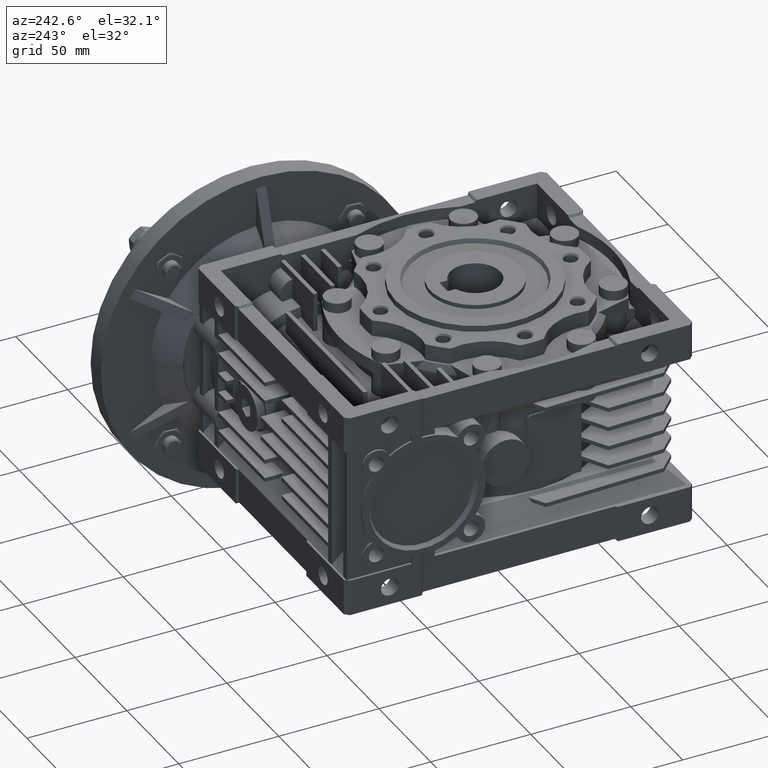
[diagram: clean part render]
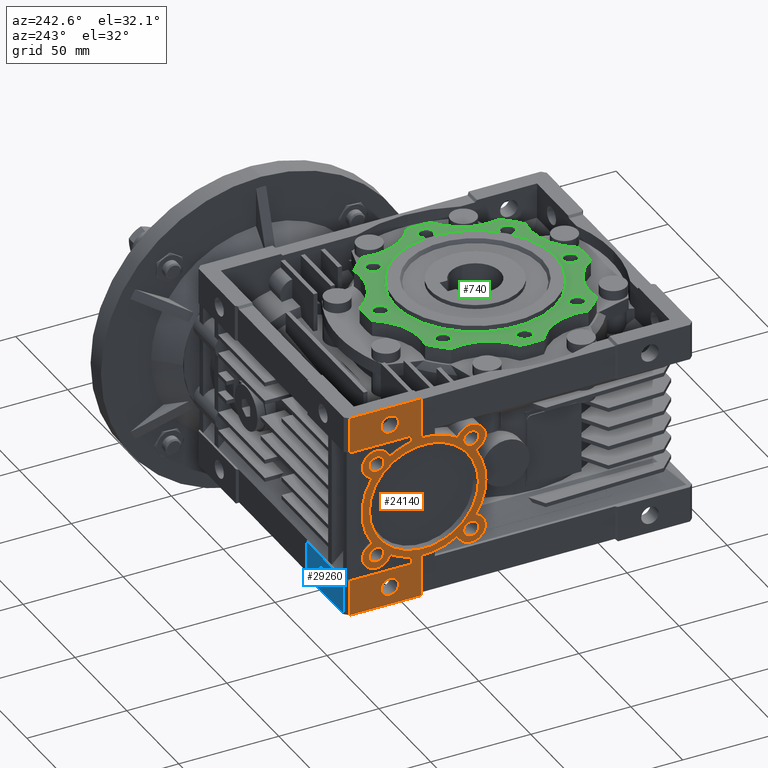
[diagram: same view with three faces highlighted in distinct colors, each labeled with its STEP entity id]
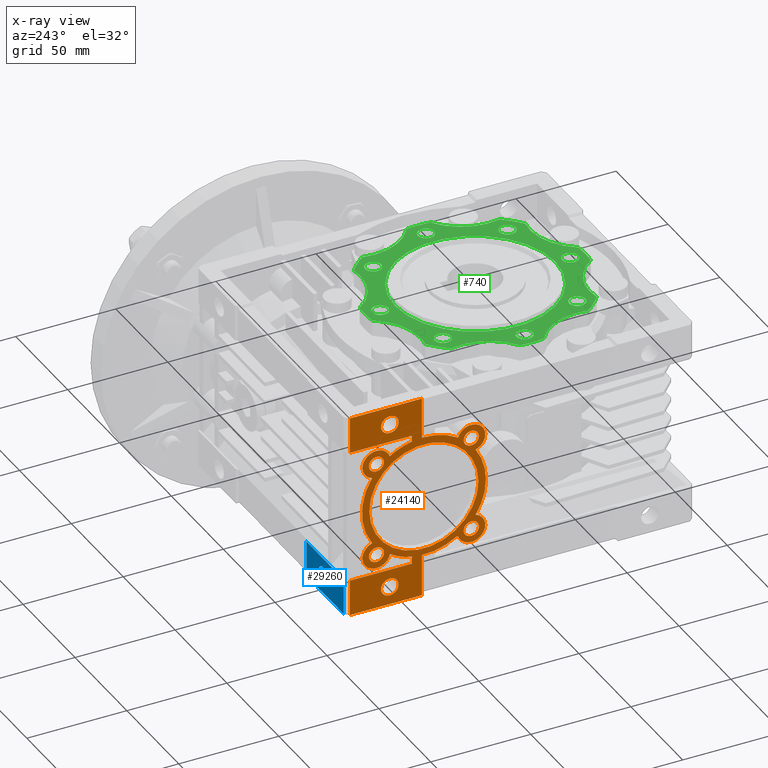
[diagram: x-ray of the same camera — body ghosted, the three highlighted faces saturated]
A machine part, auxiliary view with three faces highlighted in distinct colors.
The next image is the same camera in x-ray (body ghosted, the three faces saturated) — at least one of them is partly hidden behind the body in this view.
Their STEP definitions:

[orange] entity #24140 — the highlighted planar face has unit normal (-1, 0, 0).
#273 = DIRECTION ( 'NONE',  ( -1.000000000000000000, 0.000000000000000000, 0.000000000000000000 ) ) ;
#493 = EDGE_LOOP ( 'NONE', ( #1487, #40665 ) ) ;
#580 = DIRECTION ( 'NONE',  ( 0.000000000000000000, -1.000000000000000000, 0.000000000000000000 ) ) ;
#824 = DIRECTION ( 'NONE',  ( 1.000000000000000000, 0.000000000000000000, 0.000000000000000000 ) ) ;
#1390 = EDGE_LOOP ( 'NONE', ( #42561, #15130 ) ) ;
#1432 = DIRECTION ( 'NONE',  ( 0.000000000000000000, 0.000000000000000000, -1.000000000000000000 ) ) ;
#1487 = ORIENTED_EDGE ( 'NONE', *, *, #44357, .T. ) ;
#1678 = CARTESIAN_POINT ( 'NONE',  ( -72.00000000000000000, 100.0000000000000000, -33.50000000000000000 ) ) ;
#1798 = EDGE_LOOP ( 'NONE', ( #9841, #11365 ) ) ;
#1874 = ORIENTED_EDGE ( 'NONE', *, *, #14528, .T. ) ;
#1903 = CARTESIAN_POINT ( 'NONE',  ( -72.00000000000000000, 86.68807716974930599, 23.68807716974929889 ) ) ;
#1950 = VERTEX_POINT ( 'NONE', #42554 ) ;
#2047 = ORIENTED_EDGE ( 'NONE', *, *, #44321, .T. ) ;
#2139 = ORIENTED_EDGE ( 'NONE', *, *, #27483, .T. ) ;
#2416 = CARTESIAN_POINT ( 'NONE',  ( -72.00000000000000000, 81.73832970144350440, -18.73832970144350085 ) ) ;
#2586 = CARTESIAN_POINT ( 'NONE',  ( -72.00000000000000000, 100.0000000000000000, -51.50000000000000000 ) ) ;
#2739 = CIRCLE ( 'NONE', #26069, 3.780000000000005578 ) ;
#2824 = DIRECTION ( 'NONE',  ( 1.000000000000000000, 0.000000000000000000, 0.000000000000000000 ) ) ;
#2957 = CIRCLE ( 'NONE', #26271, 6.999999999999999112 ) ;
#3117 = FACE_BOUND ( 'NONE', #16362, .T. ) ;
#3131 = CARTESIAN_POINT ( 'NONE',  ( -72.00000000000000000, 35.53192283025069997, 23.68807716974929889 ) ) ;
#3164 = EDGE_LOOP ( 'NONE', ( #8600, #31979 ) ) ;
#3492 = DIRECTION ( 'NONE',  ( -1.000000000000000000, 0.000000000000000000, 0.000000000000000000 ) ) ;
#3504 = CARTESIAN_POINT ( 'NONE',  ( -72.00000000000000000, 80.00000000000000000, -42.50000000000000000 ) ) ;
#3638 = DIRECTION ( 'NONE',  ( 0.000000000000000000, 1.000000000000000000, 0.000000000000000000 ) ) ;
#3689 = CARTESIAN_POINT ( 'NONE',  ( -72.00000000000000000, 39.31192283025060163, 23.68807716974929889 ) ) ;
#3751 = CARTESIAN_POINT ( 'NONE',  ( -72.00000000000000000, 35.53192283025069997, -23.68807716974929889 ) ) ;
#4480 = DIRECTION ( 'NONE',  ( -1.000000000000000000, 0.000000000000000000, 0.000000000000000000 ) ) ;
#4576 = DIRECTION ( 'NONE',  ( 1.000000000000000000, 0.000000000000000000, 0.000000000000000000 ) ) ;
#4740 = VERTEX_POINT ( 'NONE', #37991 ) ;
#4777 = EDGE_CURVE ( 'NONE', #17482, #32303, #9698, .T. ) ;
#4936 = CARTESIAN_POINT ( 'NONE',  ( -72.00000000000000000, 39.31192283025070111, -23.68807716974940192 ) ) ;
#5015 = CARTESIAN_POINT ( 'NONE',  ( -72.00000000000000000, 79.89834142499850600, -25.39086562297904948 ) ) ;
#5130 = CIRCLE ( 'NONE', #37061, 3.779999999999998472 ) ;
#5460 = DIRECTION ( 'NONE',  ( 0.000000000000000000, -1.000000000000000000, 0.000000000000000000 ) ) ;
#5841 = ORIENTED_EDGE ( 'NONE', *, *, #30502, .T. ) ;
#6213 = CIRCLE ( 'NONE', #26427, 3.780000000000005578 ) ;
#6445 = CIRCLE ( 'NONE', #18084, 7.000000000000006217 ) ;
#6456 = DIRECTION ( 'NONE',  ( -1.000000000000000000, 0.000000000000000000, 0.000000000000000000 ) ) ;
#6514 = CIRCLE ( 'NONE', #18949, 4.390000000000005009 ) ;
#6532 = PLANE ( 'NONE',  #33853 ) ;
#6598 = EDGE_CURVE ( 'NONE', #40575, #18283, #6213, .T. ) ;
#6786 = LINE ( 'NONE', #28470, #20115 ) ;
#7264 = ORIENTED_EDGE ( 'NONE', *, *, #32614, .F. ) ;
#7387 = EDGE_CURVE ( 'NONE', #22120, #37602, #17971, .T. ) ;
#7418 = CARTESIAN_POINT ( 'NONE',  ( -72.00000000000000000, 86.68807716974939126, 23.68807716974940192 ) ) ;
#7856 = ORIENTED_EDGE ( 'NONE', *, *, #39740, .T. ) ;
#8282 = AXIS2_PLACEMENT_3D ( 'NONE', #30027, #38832, #45601 ) ;
#8527 = DIRECTION ( 'NONE',  ( 0.000000000000000000, 1.000000000000000000, 0.000000000000000000 ) ) ;
#8581 = VECTOR ( 'NONE', #10258, 1000.000000000000000 ) ;
#8600 = ORIENTED_EDGE ( 'NONE', *, *, #17081, .T. ) ;
#8630 = EDGE_CURVE ( 'NONE', #8794, #41178, #12454, .T. ) ;
#8686 = CIRCLE ( 'NONE', #28188, 31.00000000000000000 ) ;
#8693 = LINE ( 'NONE', #1678, #36387 ) ;
#8762 = CARTESIAN_POINT ( 'NONE',  ( -72.00000000000000000, 39.31192283025070111, -23.68807716974940192 ) ) ;
#8794 = VERTEX_POINT ( 'NONE', #22987 ) ;
#9010 = CARTESIAN_POINT ( 'NONE',  ( -72.00000000000000000, 100.0000000000000000, 33.50000000000000000 ) ) ;
#9084 = AXIS2_PLACEMENT_3D ( 'NONE', #15088, #6456, #21337 ) ;
#9405 = ORIENTED_EDGE ( 'NONE', *, *, #4777, .T. ) ;
#9478 = AXIS2_PLACEMENT_3D ( 'NONE', #8762, #45801, #23663 ) ;
#9480 = EDGE_CURVE ( 'NONE', #37602, #22120, #47223, .T. ) ;
#9581 = CIRCLE ( 'NONE', #11134, 31.00000000000000000 ) ;
#9698 = LINE ( 'NONE', #24352, #14602 ) ;
#9841 = ORIENTED_EDGE ( 'NONE', *, *, #38392, .T. ) ;
#9852 = VERTEX_POINT ( 'NONE', #18989 ) ;
#9858 = ORIENTED_EDGE ( 'NONE', *, *, #29941, .T. ) ;
#10170 = CARTESIAN_POINT ( 'NONE',  ( -72.00000000000000000, 69.00000000000000000, -33.50000000000000000 ) ) ;
#10258 = DIRECTION ( 'NONE',  ( 0.000000000000000000, 0.000000000000000000, -1.000000000000000000 ) ) ;
#10538 = LINE ( 'NONE', #10985, #35836 ) ;
#10563 = AXIS2_PLACEMENT_3D ( 'NONE', #24999, #13269, #24281 ) ;
#10575 = VERTEX_POINT ( 'NONE', #45580 ) ;
#10759 = EDGE_CURVE ( 'NONE', #33774, #20912, #8693, .T. ) ;
#10769 = DIRECTION ( 'NONE',  ( 0.000000000000000000, -1.000000000000000000, 0.000000000000000000 ) ) ;
#10823 = DIRECTION ( 'NONE',  ( 0.000000000000000000, -1.000000000000000000, 0.000000000000000000 ) ) ;
#10849 = CARTESIAN_POINT ( 'NONE',  ( -72.00000000000000000, 64.00000000000000000, 33.50000000000000000 ) ) ;
#10985 = CARTESIAN_POINT ( 'NONE',  ( -72.00000000000000000, 64.00000000000000000, -33.50000000000000000 ) ) ;
#11134 = AXIS2_PLACEMENT_3D ( 'NONE', #44903, #19347, #11530 ) ;
#11250 = AXIS2_PLACEMENT_3D ( 'NONE', #11259, #3492, #33960 ) ;
#11259 = CARTESIAN_POINT ( 'NONE',  ( -72.00000000000000000, 39.31192283025060163, 23.68807716974929889 ) ) ;
#11344 = VERTEX_POINT ( 'NONE', #46656 ) ;
#11365 = ORIENTED_EDGE ( 'NONE', *, *, #6598, .T. ) ;
#11451 = CARTESIAN_POINT ( 'NONE',  ( -72.00000000000000000, 69.00000000000000000, -33.50000000000000000 ) ) ;
#11521 = EDGE_CURVE ( 'NONE', #37011, #9852, #2957, .T. ) ;
#11530 = DIRECTION ( 'NONE',  ( 0.000000000000000000, -1.000000000000000000, 0.000000000000000000 ) ) ;
#12161 = EDGE_CURVE ( 'NONE', #31379, #32513, #41867, .T. ) ;
#12454 = CIRCLE ( 'NONE', #19483, 4.390000000000005009 ) ;
#12749 = ORIENTED_EDGE ( 'NONE', *, *, #10759, .T. ) ;
#12757 = ORIENTED_EDGE ( 'NONE', *, *, #35622, .T. ) ;
#12968 = DIRECTION ( 'NONE',  ( -1.000000000000000000, 0.000000000000000000, 0.000000000000000000 ) ) ;
#13200 = EDGE_CURVE ( 'NONE', #28251, #44687, #43657, .T. ) ;
#13269 = DIRECTION ( 'NONE',  ( 1.000000000000000000, 0.000000000000000000, 0.000000000000000000 ) ) ;
#13341 = ORIENTED_EDGE ( 'NONE', *, *, #9480, .T. ) ;
#14320 = ORIENTED_EDGE ( 'NONE', *, *, #23909, .T. ) ;
#14528 = EDGE_CURVE ( 'NONE', #35825, #22798, #8686, .T. ) ;
#14602 = VECTOR ( 'NONE', #16771, 1000.000000000000000 ) ;
#14637 = AXIS2_PLACEMENT_3D ( 'NONE', #4936, #12968, #45853 ) ;
#14864 = DIRECTION ( 'NONE',  ( -1.000000000000000000, 0.000000000000000000, 0.000000000000000000 ) ) ;
#14872 = DIRECTION ( 'NONE',  ( 0.000000000000000000, -1.000000000000000000, 0.000000000000000000 ) ) ;
#14891 = DIRECTION ( 'NONE',  ( -1.000000000000000000, 0.000000000000000000, 0.000000000000000000 ) ) ;
#14912 = ORIENTED_EDGE ( 'NONE', *, *, #47661, .T. ) ;
#14968 = EDGE_CURVE ( 'NONE', #10575, #35825, #6445, .T. ) ;
#15088 = CARTESIAN_POINT ( 'NONE',  ( -72.00000000000000000, 63.00000000000000000, -5.204170427930419706E-15 ) ) ;
#15130 = ORIENTED_EDGE ( 'NONE', *, *, #19683, .T. ) ;
#15335 = AXIS2_PLACEMENT_3D ( 'NONE', #32637, #47887, #25750 ) ;
#15540 = CARTESIAN_POINT ( 'NONE',  ( -72.00000000000000000, 63.00000000000000000, 0.000000000000000000 ) ) ;
#15591 = ORIENTED_EDGE ( 'NONE', *, *, #14968, .T. ) ;
#15739 = VERTEX_POINT ( 'NONE', #32763 ) ;
#16020 = DIRECTION ( 'NONE',  ( 0.000000000000000000, 1.000000000000000000, 0.000000000000000000 ) ) ;
#16028 = DIRECTION ( 'NONE',  ( -1.000000000000000000, 0.000000000000000000, 0.000000000000000000 ) ) ;
#16228 = ORIENTED_EDGE ( 'NONE', *, *, #42652, .T. ) ;
#16362 = EDGE_LOOP ( 'NONE', ( #13341, #34720 ) ) ;
#16649 = CARTESIAN_POINT ( 'NONE',  ( -72.00000000000000000, 35.75000000000000711, -3.337162527676537520E-15 ) ) ;
#16706 = DIRECTION ( 'NONE',  ( 0.000000000000000000, -1.000000000000000000, -1.776356839400249873E-15 ) ) ;
#16740 = DIRECTION ( 'NONE',  ( 1.000000000000000000, 0.000000000000000000, 0.000000000000000000 ) ) ;
#16771 = DIRECTION ( 'NONE',  ( 0.000000000000000000, 0.000000000000000000, 1.000000000000000000 ) ) ;
#16791 = CARTESIAN_POINT ( 'NONE',  ( -72.00000000000000000, 86.68807716974939126, -23.68807716974929889 ) ) ;
#16915 = VERTEX_POINT ( 'NONE', #3751 ) ;
#17081 = EDGE_CURVE ( 'NONE', #25732, #30307, #18906, .T. ) ;
#17259 = FACE_BOUND ( 'NONE', #3164, .T. ) ;
#17482 = VERTEX_POINT ( 'NONE', #36085 ) ;
#17695 = EDGE_CURVE ( 'NONE', #41178, #8794, #6514, .T. ) ;
#17758 = DIRECTION ( 'NONE',  ( 0.000000000000000000, 0.000000000000000000, 1.000000000000000000 ) ) ;
#17827 = CARTESIAN_POINT ( 'NONE',  ( -72.00000000000000000, 69.00000000000000000, -33.50000000000000000 ) ) ;
#17937 = ORIENTED_EDGE ( 'NONE', *, *, #11521, .T. ) ;
#17971 = CIRCLE ( 'NONE', #42061, 27.24999999999999645 ) ;
#17981 = FACE_BOUND ( 'NONE', #493, .T. ) ;
#18084 = AXIS2_PLACEMENT_3D ( 'NONE', #7418, #4480, #26889 ) ;
#18207 = DIRECTION ( 'NONE',  ( 0.000000000000000000, 0.000000000000000000, 1.000000000000000000 ) ) ;
#18234 = CIRCLE ( 'NONE', #26012, 3.779999999999998472 ) ;
#18283 = VERTEX_POINT ( 'NONE', #33679 ) ;
#18502 = AXIS2_PLACEMENT_3D ( 'NONE', #36904, #29340, #47806 ) ;
#18906 = CIRCLE ( 'NONE', #28268, 4.390000000000005009 ) ;
#18949 = AXIS2_PLACEMENT_3D ( 'NONE', #43515, #2824, #10823 ) ;
#18989 = CARTESIAN_POINT ( 'NONE',  ( -72.00000000000000000, 45.95537634133370375, 25.89364409144510049 ) ) ;
#19080 = CARTESIAN_POINT ( 'NONE',  ( -72.00000000000000000, 86.68807716974930599, 23.68807716974929889 ) ) ;
#19189 = EDGE_LOOP ( 'NONE', ( #41395, #36455, #45458, #7856, #19583, #2047, #17937, #16228, #9405, #5841, #12749, #45025, #12757, #30529, #15591, #1874, #30568, #14912, #35169, #9858, #7264, #30878, #2139, #14320 ) ) ;
#19212 = CIRCLE ( 'NONE', #8282, 30.50000000000000000 ) ;
#19228 = ORIENTED_EDGE ( 'NONE', *, *, #17695, .T. ) ;
#19347 = DIRECTION ( 'NONE',  ( -1.000000000000000000, 0.000000000000000000, 0.000000000000000000 ) ) ;
#19483 = AXIS2_PLACEMENT_3D ( 'NONE', #3504, #36925, #47831 ) ;
#19583 = ORIENTED_EDGE ( 'NONE', *, *, #40312, .T. ) ;
#19683 = EDGE_CURVE ( 'NONE', #4740, #16915, #5130, .T. ) ;
#19946 = CARTESIAN_POINT ( 'NONE',  ( -72.00000000000000000, 63.00000000000000000, -4.857225732735059864E-14 ) ) ;
#20033 = CARTESIAN_POINT ( 'NONE',  ( -72.00000000000000000, 63.00000000000000000, 0.000000000000000000 ) ) ;
#20115 = VECTOR ( 'NONE', #17758, 1000.000000000000000 ) ;
#20194 = DIRECTION ( 'NONE',  ( 0.000000000000000000, 1.000000000000000000, 0.000000000000000000 ) ) ;
#20441 = CARTESIAN_POINT ( 'NONE',  ( -72.00000000000000000, 63.00000000000000000, 0.000000000000000000 ) ) ;
#20467 = DIRECTION ( 'NONE',  ( 0.000000000000000000, -1.000000000000000000, 0.000000000000000000 ) ) ;
#20882 = CARTESIAN_POINT ( 'NONE',  ( -72.00000000000000000, 63.00000000000000000, -8.673617379884040205E-15 ) ) ;
#20912 = VERTEX_POINT ( 'NONE', #9010 ) ;
#20939 = CARTESIAN_POINT ( 'NONE',  ( -72.00000000000000000, 64.00000000000000000, -33.50000000000000000 ) ) ;
#21337 = DIRECTION ( 'NONE',  ( 0.000000000000000000, -1.000000000000000000, 0.000000000000000000 ) ) ;
#21415 = FACE_OUTER_BOUND ( 'NONE', #19189, .T. ) ;
#21885 = FACE_BOUND ( 'NONE', #1798, .T. ) ;
#22120 = VERTEX_POINT ( 'NONE', #16649 ) ;
#22203 = CARTESIAN_POINT ( 'NONE',  ( -72.00000000000000000, 90.46807716974940661, -23.68807716974929889 ) ) ;
#22267 = CARTESIAN_POINT ( 'NONE',  ( -72.00000000000000000, 43.09192283025070225, 23.68807716974929889 ) ) ;
#22473 = EDGE_CURVE ( 'NONE', #35905, #45185, #35838, .T. ) ;
#22691 = DIRECTION ( 'NONE',  ( 1.000000000000000000, 0.000000000000000000, 0.000000000000000000 ) ) ;
#22798 = VERTEX_POINT ( 'NONE', #37468 ) ;
#22987 = CARTESIAN_POINT ( 'NONE',  ( -72.00000000000000000, 75.60999999999999943, -42.50000000000000000 ) ) ;
#22988 = CARTESIAN_POINT ( 'NONE',  ( -72.00000000000000000, 64.00000000000000000, 51.50000000000000000 ) ) ;
#23026 = EDGE_CURVE ( 'NONE', #20912, #45527, #44243, .T. ) ;
#23171 = DIRECTION ( 'NONE',  ( 0.000000000000000000, 0.000000000000000000, 1.000000000000000000 ) ) ;
#23517 = EDGE_CURVE ( 'NONE', #22798, #33024, #47073, .T. ) ;
#23663 = DIRECTION ( 'NONE',  ( 0.000000000000000000, -1.000000000000000000, 0.000000000000000000 ) ) ;
#23711 = CARTESIAN_POINT ( 'NONE',  ( -72.00000000000000000, 90.25000000000000000, 0.000000000000000000 ) ) ;
#23726 = VECTOR ( 'NONE', #43292, 1000.000000000000000 ) ;
#23846 = DIRECTION ( 'NONE',  ( 1.000000000000000000, 0.000000000000000000, 0.000000000000000000 ) ) ;
#23871 = DIRECTION ( 'NONE',  ( 0.000000000000000000, 0.9805874010611383973, 0.1960825052883660990 ) ) ;
#23909 = EDGE_CURVE ( 'NONE', #11344, #45185, #33042, .T. ) ;
#24140 = ADVANCED_FACE ( 'NONE', ( #21415, #25293, #17981, #21885, #36765, #17259, #36547, #3117 ), #6532, .T. ) ;
#24161 = CARTESIAN_POINT ( 'NONE',  ( -72.00000000000000000, 84.39000000000000057, 42.50000000000000000 ) ) ;
#24281 = DIRECTION ( 'NONE',  ( 0.000000000000000000, -1.000000000000000000, 0.000000000000000000 ) ) ;
#24352 = CARTESIAN_POINT ( 'NONE',  ( -72.00000000000000000, 64.00000000000000000, -33.50000000000000000 ) ) ;
#24576 = CARTESIAN_POINT ( 'NONE',  ( -72.00000000000000000, 100.0000000000000000, 51.50000000000000000 ) ) ;
#24784 = AXIS2_PLACEMENT_3D ( 'NONE', #1903, #16740, #35305 ) ;
#24999 = CARTESIAN_POINT ( 'NONE',  ( -72.00000000000000000, 86.68807716974939126, -23.68807716974929889 ) ) ;
#25177 = DIRECTION ( 'NONE',  ( 0.000000000000000000, 1.000000000000000000, 0.000000000000000000 ) ) ;
#25293 = FACE_BOUND ( 'NONE', #26662, .T. ) ;
#25398 = CARTESIAN_POINT ( 'NONE',  ( -72.00000000000000000, 69.00000000000000000, 33.50000000000000000 ) ) ;
#25508 = VECTOR ( 'NONE', #3638, 1000.000000000000000 ) ;
#25578 = CIRCLE ( 'NONE', #14637, 6.999999999999999112 ) ;
#25681 = CARTESIAN_POINT ( 'NONE',  ( -72.00000000000000000, 32.31192283025060163, 23.68807716974929889 ) ) ;
#25732 = VERTEX_POINT ( 'NONE', #32895 ) ;
#25750 = DIRECTION ( 'NONE',  ( 0.000000000000000000, -1.000000000000000000, 0.000000000000000000 ) ) ;
#25845 = EDGE_CURVE ( 'NONE', #30307, #25732, #40240, .T. ) ;
#25878 = CARTESIAN_POINT ( 'NONE',  ( -72.00000000000000000, 86.68807716974939126, -23.68807716974929889 ) ) ;
#25989 = CARTESIAN_POINT ( 'NONE',  ( -72.00000000000000000, 0.000000000000000000, -51.50000000000000000 ) ) ;
#26012 = AXIS2_PLACEMENT_3D ( 'NONE', #32796, #43727, #48056 ) ;
#26069 = AXIS2_PLACEMENT_3D ( 'NONE', #19080, #44423, #40773 ) ;
#26271 = AXIS2_PLACEMENT_3D ( 'NONE', #3689, #273, #10769 ) ;
#26291 = LINE ( 'NONE', #45031, #25508 ) ;
#26337 = LINE ( 'NONE', #37326, #44328 ) ;
#26427 = AXIS2_PLACEMENT_3D ( 'NONE', #16791, #34860, #20467 ) ;
#26451 = CARTESIAN_POINT ( 'NONE',  ( -72.00000000000000000, 32.31192283025070111, -23.68807716974940192 ) ) ;
#26509 = DIRECTION ( 'NONE',  ( 0.000000000000000000, -1.000000000000000000, 0.000000000000000000 ) ) ;
#26540 = VERTEX_POINT ( 'NONE', #22267 ) ;
#26662 = EDGE_LOOP ( 'NONE', ( #46731, #36832 ) ) ;
#26746 = CARTESIAN_POINT ( 'NONE',  ( -72.00000000000000000, 39.31192283025070111, -23.68807716974929889 ) ) ;
#26793 = CARTESIAN_POINT ( 'NONE',  ( -72.00000000000000000, 64.00000000000000000, -51.50000000000000000 ) ) ;
#26889 = DIRECTION ( 'NONE',  ( 0.000000000000000000, -1.000000000000000000, 0.000000000000000000 ) ) ;
#26970 = AXIS2_PLACEMENT_3D ( 'NONE', #41759, #46105, #5460 ) ;
#27123 = CARTESIAN_POINT ( 'NONE',  ( -72.00000000000000000, 80.00000000000000000, 42.50000000000000000 ) ) ;
#27483 = EDGE_CURVE ( 'NONE', #37813, #11344, #6786, .T. ) ;
#27653 = AXIS2_PLACEMENT_3D ( 'NONE', #25878, #14891, #33934 ) ;
#27663 = EDGE_CURVE ( 'NONE', #37813, #42305, #30117, .T. ) ;
#28188 = AXIS2_PLACEMENT_3D ( 'NONE', #20882, #31613, #16706 ) ;
#28251 = VERTEX_POINT ( 'NONE', #41551 ) ;
#28268 = AXIS2_PLACEMENT_3D ( 'NONE', #27123, #824, #580 ) ;
#28470 = CARTESIAN_POINT ( 'NONE',  ( -72.00000000000000000, 64.00000000000000000, -33.50000000000000000 ) ) ;
#28712 = DIRECTION ( 'NONE',  ( -1.000000000000000000, 0.000000000000000000, 0.000000000000000000 ) ) ;
#28720 = EDGE_CURVE ( 'NONE', #35642, #15739, #25578, .T. ) ;
#28764 = CARTESIAN_POINT ( 'NONE',  ( -72.00000000000000000, 88.89364409144509693, 17.04462365866634954 ) ) ;
#28923 = CARTESIAN_POINT ( 'NONE',  ( -72.00000000000000000, 46.65882385822339984, -25.75297967815435030 ) ) ;
#28974 = EDGE_CURVE ( 'NONE', #29691, #10575, #32708, .T. ) ;
#28979 = VERTEX_POINT ( 'NONE', #30914 ) ;
#29259 = CIRCLE ( 'NONE', #10563, 3.780000000000005578 ) ;
#29340 = DIRECTION ( 'NONE',  ( -1.000000000000000000, 0.000000000000000000, 0.000000000000000000 ) ) ;
#29527 = DIRECTION ( 'NONE',  ( 0.000000000000000000, -1.000000000000000000, 8.881784197001250351E-16 ) ) ;
#29691 = VERTEX_POINT ( 'NONE', #38109 ) ;
#29941 = EDGE_CURVE ( 'NONE', #44687, #1950, #10538, .T. ) ;
#29987 = CARTESIAN_POINT ( 'NONE',  ( -72.00000000000000000, 39.31192283025070111, -23.68807716974929889 ) ) ;
#30027 = CARTESIAN_POINT ( 'NONE',  ( -72.00000000000000000, 63.00000000000000000, 0.000000000000000000 ) ) ;
#30117 = LINE ( 'NONE', #25989, #44968 ) ;
#30307 = VERTEX_POINT ( 'NONE', #24161 ) ;
#30502 = EDGE_CURVE ( 'NONE', #32303, #33774, #26291, .T. ) ;
#30529 = ORIENTED_EDGE ( 'NONE', *, *, #28974, .T. ) ;
#30568 = ORIENTED_EDGE ( 'NONE', *, *, #23517, .T. ) ;
#30878 = ORIENTED_EDGE ( 'NONE', *, *, #27663, .F. ) ;
#30914 = CARTESIAN_POINT ( 'NONE',  ( -72.00000000000000000, 37.10635590855485333, 17.04462365866625007 ) ) ;
#31379 = VERTEX_POINT ( 'NONE', #35653 ) ;
#31613 = DIRECTION ( 'NONE',  ( -1.000000000000000000, 0.000000000000000000, 0.000000000000000000 ) ) ;
#31902 = VERTEX_POINT ( 'NONE', #43812 ) ;
#31979 = ORIENTED_EDGE ( 'NONE', *, *, #25845, .T. ) ;
#32076 = CIRCLE ( 'NONE', #9478, 6.999999999999999112 ) ;
#32151 = LINE ( 'NONE', #10170, #43140 ) ;
#32303 = VERTEX_POINT ( 'NONE', #22988 ) ;
#32501 = AXIS2_PLACEMENT_3D ( 'NONE', #15540, #4576, #16020 ) ;
#32513 = VERTEX_POINT ( 'NONE', #43451 ) ;
#32614 = EDGE_CURVE ( 'NONE', #42305, #1950, #26337, .T. ) ;
#32637 = CARTESIAN_POINT ( 'NONE',  ( -72.00000000000000000, 39.31192283025070111, 23.68807716974929889 ) ) ;
#32673 = EDGE_CURVE ( 'NONE', #16915, #4740, #46647, .T. ) ;
#32708 = CIRCLE ( 'NONE', #36503, 31.00000000000000000 ) ;
#32763 = CARTESIAN_POINT ( 'NONE',  ( -72.00000000000000000, 37.10635590855489596, -17.04462365866639928 ) ) ;
#32796 = CARTESIAN_POINT ( 'NONE',  ( -72.00000000000000000, 39.31192283025070111, 23.68807716974929889 ) ) ;
#32895 = CARTESIAN_POINT ( 'NONE',  ( -72.00000000000000000, 75.60999999999999943, 42.50000000000000000 ) ) ;
#32911 = VERTEX_POINT ( 'NONE', #3131 ) ;
#33024 = VERTEX_POINT ( 'NONE', #5015 ) ;
#33042 = CIRCLE ( 'NONE', #43141, 30.50000000000000000 ) ;
#33679 = CARTESIAN_POINT ( 'NONE',  ( -72.00000000000000000, 82.90807716974939012, -23.68807716974929889 ) ) ;
#33774 = VERTEX_POINT ( 'NONE', #24576 ) ;
#33853 = AXIS2_PLACEMENT_3D ( 'NONE', #20939, #28712, #18207 ) ;
#33934 = DIRECTION ( 'NONE',  ( 0.000000000000000000, -1.000000000000000000, 0.000000000000000000 ) ) ;
#33960 = DIRECTION ( 'NONE',  ( 0.000000000000000000, -1.000000000000000000, 0.000000000000000000 ) ) ;
#34163 = CARTESIAN_POINT ( 'NONE',  ( -72.00000000000000000, 84.39000000000000057, -42.50000000000000000 ) ) ;
#34720 = ORIENTED_EDGE ( 'NONE', *, *, #7387, .T. ) ;
#34860 = DIRECTION ( 'NONE',  ( 1.000000000000000000, 0.000000000000000000, 0.000000000000000000 ) ) ;
#35169 = ORIENTED_EDGE ( 'NONE', *, *, #13200, .T. ) ;
#35305 = DIRECTION ( 'NONE',  ( 0.000000000000000000, -1.000000000000000000, 0.000000000000000000 ) ) ;
#35622 = EDGE_CURVE ( 'NONE', #45527, #29691, #32151, .T. ) ;
#35642 = VERTEX_POINT ( 'NONE', #26451 ) ;
#35653 = CARTESIAN_POINT ( 'NONE',  ( -72.00000000000000000, 90.46807716974930713, 23.68807716974929889 ) ) ;
#35825 = VERTEX_POINT ( 'NONE', #28764 ) ;
#35836 = VECTOR ( 'NONE', #25177, 1000.000000000000000 ) ;
#35838 = LINE ( 'NONE', #2416, #43859 ) ;
#35905 = VERTEX_POINT ( 'NONE', #39511 ) ;
#36085 = CARTESIAN_POINT ( 'NONE',  ( -72.00000000000000000, 64.00000000000000000, 30.98386676965930064 ) ) ;
#36247 = CIRCLE ( 'NONE', #11250, 6.999999999999999112 ) ;
#36387 = VECTOR ( 'NONE', #1432, 1000.000000000000000 ) ;
#36426 = CIRCLE ( 'NONE', #18502, 31.00000000000000000 ) ;
#36455 = ORIENTED_EDGE ( 'NONE', *, *, #41189, .T. ) ;
#36503 = AXIS2_PLACEMENT_3D ( 'NONE', #19946, #14864, #29527 ) ;
#36547 = FACE_BOUND ( 'NONE', #38209, .T. ) ;
#36765 = FACE_BOUND ( 'NONE', #1390, .T. ) ;
#36832 = ORIENTED_EDGE ( 'NONE', *, *, #37024, .T. ) ;
#36904 = CARTESIAN_POINT ( 'NONE',  ( -72.00000000000000000, 63.00000000000000000, -5.204170427930419706E-15 ) ) ;
#36925 = DIRECTION ( 'NONE',  ( 1.000000000000000000, 0.000000000000000000, 0.000000000000000000 ) ) ;
#37011 = VERTEX_POINT ( 'NONE', #25681 ) ;
#37024 = EDGE_CURVE ( 'NONE', #26540, #32911, #18234, .T. ) ;
#37061 = AXIS2_PLACEMENT_3D ( 'NONE', #26746, #23846, #26509 ) ;
#37326 = CARTESIAN_POINT ( 'NONE',  ( -72.00000000000000000, 100.0000000000000000, -33.50000000000000000 ) ) ;
#37468 = CARTESIAN_POINT ( 'NONE',  ( -72.00000000000000000, 88.89364409144519641, -17.04462365866629980 ) ) ;
#37602 = VERTEX_POINT ( 'NONE', #23711 ) ;
#37813 = VERTEX_POINT ( 'NONE', #26793 ) ;
#37913 = CIRCLE ( 'NONE', #9084, 31.00000000000000000 ) ;
#37991 = CARTESIAN_POINT ( 'NONE',  ( -72.00000000000000000, 43.09192283025070225, -23.68807716974929889 ) ) ;
#38109 = CARTESIAN_POINT ( 'NONE',  ( -72.00000000000000000, 69.00000000000000000, 30.41381265149104962 ) ) ;
#38209 = EDGE_LOOP ( 'NONE', ( #45221, #19228 ) ) ;
#38392 = EDGE_CURVE ( 'NONE', #18283, #40575, #29259, .T. ) ;
#38559 = DIRECTION ( 'NONE',  ( 1.000000000000000000, 0.000000000000000000, 0.000000000000000000 ) ) ;
#38731 = CIRCLE ( 'NONE', #15335, 3.779999999999998472 ) ;
#38832 = DIRECTION ( 'NONE',  ( -1.000000000000000000, 0.000000000000000000, 0.000000000000000000 ) ) ;
#38903 = AXIS2_PLACEMENT_3D ( 'NONE', #29987, #22691, #14872 ) ;
#39511 = CARTESIAN_POINT ( 'NONE',  ( -72.00000000000000000, 45.95537634133370375, -25.89364409144515022 ) ) ;
#39693 = DIRECTION ( 'NONE',  ( 0.000000000000000000, 0.000000000000000000, -1.000000000000000000 ) ) ;
#39740 = EDGE_CURVE ( 'NONE', #15739, #31902, #37913, .T. ) ;
#40012 = EDGE_CURVE ( 'NONE', #32911, #26540, #38731, .T. ) ;
#40240 = CIRCLE ( 'NONE', #26970, 4.390000000000005009 ) ;
#40312 = EDGE_CURVE ( 'NONE', #31902, #28979, #36426, .T. ) ;
#40418 = DIRECTION ( 'NONE',  ( 0.000000000000000000, 1.000000000000000000, 0.000000000000000000 ) ) ;
#40575 = VERTEX_POINT ( 'NONE', #22203 ) ;
#40665 = ORIENTED_EDGE ( 'NONE', *, *, #12161, .T. ) ;
#40773 = DIRECTION ( 'NONE',  ( 0.000000000000000000, -1.000000000000000000, 0.000000000000000000 ) ) ;
#41178 = VERTEX_POINT ( 'NONE', #34163 ) ;
#41189 = EDGE_CURVE ( 'NONE', #35905, #35642, #32076, .T. ) ;
#41395 = ORIENTED_EDGE ( 'NONE', *, *, #22473, .F. ) ;
#41551 = CARTESIAN_POINT ( 'NONE',  ( -72.00000000000000000, 69.00000000000000000, -29.90401310861140161 ) ) ;
#41759 = CARTESIAN_POINT ( 'NONE',  ( -72.00000000000000000, 80.00000000000000000, 42.50000000000000000 ) ) ;
#41867 = CIRCLE ( 'NONE', #24784, 3.780000000000005578 ) ;
#42061 = AXIS2_PLACEMENT_3D ( 'NONE', #20033, #38559, #8527 ) ;
#42305 = VERTEX_POINT ( 'NONE', #2586 ) ;
#42554 = CARTESIAN_POINT ( 'NONE',  ( -72.00000000000000000, 100.0000000000000000, -33.50000000000000000 ) ) ;
#42561 = ORIENTED_EDGE ( 'NONE', *, *, #32673, .T. ) ;
#42652 = EDGE_CURVE ( 'NONE', #9852, #17482, #9581, .T. ) ;
#43140 = VECTOR ( 'NONE', #39693, 1000.000000000000000 ) ;
#43141 = AXIS2_PLACEMENT_3D ( 'NONE', #20441, #16028, #20194 ) ;
#43292 = DIRECTION ( 'NONE',  ( 0.000000000000000000, -1.000000000000000000, 0.000000000000000000 ) ) ;
#43451 = CARTESIAN_POINT ( 'NONE',  ( -72.00000000000000000, 82.90807716974929065, 23.68807716974929889 ) ) ;
#43515 = CARTESIAN_POINT ( 'NONE',  ( -72.00000000000000000, 80.00000000000000000, -42.50000000000000000 ) ) ;
#43657 = LINE ( 'NONE', #17827, #8581 ) ;
#43727 = DIRECTION ( 'NONE',  ( 1.000000000000000000, 0.000000000000000000, 0.000000000000000000 ) ) ;
#43812 = CARTESIAN_POINT ( 'NONE',  ( -72.00000000000000000, 32.00000000000000000, -5.204170427930419706E-15 ) ) ;
#43859 = VECTOR ( 'NONE', #23871, 1000.000000000000000 ) ;
#44243 = LINE ( 'NONE', #10849, #23726 ) ;
#44321 = EDGE_CURVE ( 'NONE', #28979, #37011, #36247, .T. ) ;
#44328 = VECTOR ( 'NONE', #23171, 1000.000000000000000 ) ;
#44357 = EDGE_CURVE ( 'NONE', #32513, #31379, #2739, .T. ) ;
#44423 = DIRECTION ( 'NONE',  ( 1.000000000000000000, 0.000000000000000000, 0.000000000000000000 ) ) ;
#44687 = VERTEX_POINT ( 'NONE', #11451 ) ;
#44903 = CARTESIAN_POINT ( 'NONE',  ( -72.00000000000000000, 63.00000000000000000, -4.857225732735059864E-14 ) ) ;
#44968 = VECTOR ( 'NONE', #40418, 1000.000000000000000 ) ;
#45025 = ORIENTED_EDGE ( 'NONE', *, *, #23026, .T. ) ;
#45031 = CARTESIAN_POINT ( 'NONE',  ( -72.00000000000000000, 0.000000000000000000, 51.50000000000000000 ) ) ;
#45185 = VERTEX_POINT ( 'NONE', #28923 ) ;
#45221 = ORIENTED_EDGE ( 'NONE', *, *, #8630, .T. ) ;
#45458 = ORIENTED_EDGE ( 'NONE', *, *, #28720, .T. ) ;
#45527 = VERTEX_POINT ( 'NONE', #25398 ) ;
#45580 = CARTESIAN_POINT ( 'NONE',  ( -72.00000000000000000, 80.04462365866640994, 25.89364409144515022 ) ) ;
#45601 = DIRECTION ( 'NONE',  ( 0.000000000000000000, 1.000000000000000000, 0.000000000000000000 ) ) ;
#45801 = DIRECTION ( 'NONE',  ( -1.000000000000000000, 0.000000000000000000, 0.000000000000000000 ) ) ;
#45853 = DIRECTION ( 'NONE',  ( 0.000000000000000000, -1.000000000000000000, 0.000000000000000000 ) ) ;
#46105 = DIRECTION ( 'NONE',  ( 1.000000000000000000, 0.000000000000000000, 0.000000000000000000 ) ) ;
#46647 = CIRCLE ( 'NONE', #38903, 3.779999999999998472 ) ;
#46656 = CARTESIAN_POINT ( 'NONE',  ( -72.00000000000000000, 64.00000000000000000, -30.48360214935234680 ) ) ;
#46731 = ORIENTED_EDGE ( 'NONE', *, *, #40012, .T. ) ;
#47073 = CIRCLE ( 'NONE', #27653, 7.000000000000006217 ) ;
#47223 = CIRCLE ( 'NONE', #32501, 27.24999999999999645 ) ;
#47661 = EDGE_CURVE ( 'NONE', #33024, #28251, #19212, .T. ) ;
#47806 = DIRECTION ( 'NONE',  ( 0.000000000000000000, -1.000000000000000000, 0.000000000000000000 ) ) ;
#47831 = DIRECTION ( 'NONE',  ( 0.000000000000000000, -1.000000000000000000, 0.000000000000000000 ) ) ;
#47887 = DIRECTION ( 'NONE',  ( 1.000000000000000000, 0.000000000000000000, 0.000000000000000000 ) ) ;
#48056 = DIRECTION ( 'NONE',  ( 0.000000000000000000, -1.000000000000000000, 0.000000000000000000 ) ) ;

[blue] entity #29260 — the highlighted planar face has unit normal (-0, 1, 0).
#152 = FACE_BOUND ( 'NONE', #25442, .T. ) ;
#2231 = DIRECTION ( 'NONE',  ( 0.000000000000000000, 0.000000000000000000, -1.000000000000000000 ) ) ;
#3802 = CARTESIAN_POINT ( 'NONE',  ( -34.00000000000000000, 102.0000000000000000, -33.50000000000000000 ) ) ;
#6154 = AXIS2_PLACEMENT_3D ( 'NONE', #41560, #37450, #15232 ) ;
#6205 = EDGE_LOOP ( 'NONE', ( #18354, #11380, #39724, #42762 ) ) ;
#7311 = DIRECTION ( 'NONE',  ( 1.000000000000000000, 0.000000000000000000, 0.000000000000000000 ) ) ;
#8503 = CARTESIAN_POINT ( 'NONE',  ( -70.00000000000000000, 102.0000000000000000, -51.50000000000000000 ) ) ;
#9875 = DIRECTION ( 'NONE',  ( 1.000000000000000000, 0.000000000000000000, 0.000000000000000000 ) ) ;
#10717 = LINE ( 'NONE', #47736, #11842 ) ;
#10888 = FACE_OUTER_BOUND ( 'NONE', #6205, .T. ) ;
#10961 = CARTESIAN_POINT ( 'NONE',  ( -70.00000000000000000, 102.0000000000000000, -33.50000000000000000 ) ) ;
#11022 = AXIS2_PLACEMENT_3D ( 'NONE', #24407, #35878, #2231 ) ;
#11380 = ORIENTED_EDGE ( 'NONE', *, *, #25581, .T. ) ;
#11842 = VECTOR ( 'NONE', #7311, 1000.000000000000000 ) ;
#13371 = CIRCLE ( 'NONE', #11022, 4.389999999999997904 ) ;
#13902 = VERTEX_POINT ( 'NONE', #39143 ) ;
#14532 = PLANE ( 'NONE',  #6154 ) ;
#15232 = DIRECTION ( 'NONE',  ( 1.000000000000000000, 0.000000000000000000, 0.000000000000000000 ) ) ;
#16023 = EDGE_CURVE ( 'NONE', #22497, #13902, #13371, .T. ) ;
#17270 = DIRECTION ( 'NONE',  ( 0.000000000000000000, 0.000000000000000000, -1.000000000000000000 ) ) ;
#17553 = ORIENTED_EDGE ( 'NONE', *, *, #25166, .T. ) ;
#18354 = ORIENTED_EDGE ( 'NONE', *, *, #22171, .T. ) ;
#20133 = VECTOR ( 'NONE', #9875, 1000.000000000000000 ) ;
#22124 = DIRECTION ( 'NONE',  ( 0.000000000000000000, -1.000000000000000000, 0.000000000000000000 ) ) ;
#22171 = EDGE_CURVE ( 'NONE', #46378, #29148, #10717, .T. ) ;
#22426 = LINE ( 'NONE', #10961, #41391 ) ;
#22497 = VERTEX_POINT ( 'NONE', #43355 ) ;
#23835 = VECTOR ( 'NONE', #44595, 1000.000000000000000 ) ;
#24407 = CARTESIAN_POINT ( 'NONE',  ( -50.00000000000000000, 102.0000000000000000, -42.50000000000000000 ) ) ;
#25166 = EDGE_CURVE ( 'NONE', #13902, #22497, #47890, .T. ) ;
#25442 = EDGE_LOOP ( 'NONE', ( #31528, #17553 ) ) ;
#25581 = EDGE_CURVE ( 'NONE', #29148, #35482, #33454, .T. ) ;
#28160 = LINE ( 'NONE', #46161, #20133 ) ;
#29148 = VERTEX_POINT ( 'NONE', #3802 ) ;
#29260 = ADVANCED_FACE ( 'NONE', ( #10888, #152 ), #14532, .T. ) ;
#29750 = CARTESIAN_POINT ( 'NONE',  ( -34.00000000000000000, 102.0000000000000000, -33.50000000000000000 ) ) ;
#31528 = ORIENTED_EDGE ( 'NONE', *, *, #16023, .T. ) ;
#32069 = CARTESIAN_POINT ( 'NONE',  ( -70.00000000000000000, 102.0000000000000000, -33.50000000000000000 ) ) ;
#32119 = EDGE_CURVE ( 'NONE', #37930, #35482, #28160, .T. ) ;
#33454 = LINE ( 'NONE', #29750, #23835 ) ;
#35482 = VERTEX_POINT ( 'NONE', #45983 ) ;
#35878 = DIRECTION ( 'NONE',  ( 0.000000000000000000, -1.000000000000000000, 0.000000000000000000 ) ) ;
#37072 = DIRECTION ( 'NONE',  ( 0.000000000000000000, 0.000000000000000000, -1.000000000000000000 ) ) ;
#37450 = DIRECTION ( 'NONE',  ( -0.000000000000000000, 1.000000000000000000, 0.000000000000000000 ) ) ;
#37930 = VERTEX_POINT ( 'NONE', #8503 ) ;
#38587 = AXIS2_PLACEMENT_3D ( 'NONE', #40639, #22124, #17270 ) ;
#39143 = CARTESIAN_POINT ( 'NONE',  ( -50.00000000000000000, 102.0000000000000000, -38.11000000000000654 ) ) ;
#39724 = ORIENTED_EDGE ( 'NONE', *, *, #32119, .F. ) ;
#40639 = CARTESIAN_POINT ( 'NONE',  ( -50.00000000000000000, 102.0000000000000000, -42.50000000000000000 ) ) ;
#41391 = VECTOR ( 'NONE', #37072, 1000.000000000000000 ) ;
#41560 = CARTESIAN_POINT ( 'NONE',  ( -70.00000000000000000, 102.0000000000000000, -33.50000000000000000 ) ) ;
#41680 = EDGE_CURVE ( 'NONE', #46378, #37930, #22426, .T. ) ;
#42762 = ORIENTED_EDGE ( 'NONE', *, *, #41680, .F. ) ;
#43355 = CARTESIAN_POINT ( 'NONE',  ( -50.00000000000000000, 102.0000000000000000, -46.89000000000000057 ) ) ;
#44595 = DIRECTION ( 'NONE',  ( 0.000000000000000000, 0.000000000000000000, -1.000000000000000000 ) ) ;
#45983 = CARTESIAN_POINT ( 'NONE',  ( -34.00000000000000000, 102.0000000000000000, -51.50000000000000000 ) ) ;
#46161 = CARTESIAN_POINT ( 'NONE',  ( 0.000000000000000000, 102.0000000000000000, -51.50000000000000000 ) ) ;
#46378 = VERTEX_POINT ( 'NONE', #32069 ) ;
#47736 = CARTESIAN_POINT ( 'NONE',  ( -70.00000000000000000, 102.0000000000000000, -33.50000000000000000 ) ) ;
#47890 = CIRCLE ( 'NONE', #38587, 4.389999999999997904 ) ;

[green] entity #740 — the highlighted planar face has unit normal (0, 0, -1).
#372 = CARTESIAN_POINT ( 'NONE',  ( 33.58757210636100154, 37.58757210630398049, 52.99999999999729994 ) ) ;
#410 = VERTEX_POINT ( 'NONE', #38504 ) ;
#424 = FACE_BOUND ( 'NONE', #550, .T. ) ;
#549 = AXIS2_PLACEMENT_3D ( 'NONE', #16356, #9292, #46802 ) ;
#550 = EDGE_LOOP ( 'NONE', ( #31974, #28607 ) ) ;
#574 = CARTESIAN_POINT ( 'NONE',  ( 0.000000000000000000, 0.000000000000000000, 53.00000000000000000 ) ) ;
#657 = ORIENTED_EDGE ( 'NONE', *, *, #7674, .F. ) ;
#740 = ADVANCED_FACE ( 'NONE', ( #18482, #37023, #22603, #424, #11604, #4302, #14794, #47929, #29681, #30147 ), #22835, .F. ) ;
#947 = CARTESIAN_POINT ( 'NONE',  ( 34.41484697610374610, -42.90242775894340355, 53.00000000000000000 ) ) ;
#1070 = AXIS2_PLACEMENT_3D ( 'NONE', #44309, #48170, #44990 ) ;
#1122 = DIRECTION ( 'NONE',  ( 0.000000000000000000, 0.000000000000000000, 1.000000000000000000 ) ) ;
#1451 = CARTESIAN_POINT ( 'NONE',  ( 28.70125742738170160, 69.29096493834650516, 53.00000000000000000 ) ) ;
#1501 = DIRECTION ( 'NONE',  ( -1.027984282060329962E-15, -1.000000000000000000, 0.000000000000000000 ) ) ;
#1507 = DIRECTION ( 'NONE',  ( 0.000000000000000000, 0.000000000000000000, 1.000000000000000000 ) ) ;
#1523 = CARTESIAN_POINT ( 'NONE',  ( 33.58757210636100154, 33.58757210636100154, 52.99999999999729994 ) ) ;
#1708 = VERTEX_POINT ( 'NONE', #17168 ) ;
#1746 = CARTESIAN_POINT ( 'NONE',  ( -47.50000000000000000, 4.000000000075998763, 52.99999999999729994 ) ) ;
#1872 = DIRECTION ( 'NONE',  ( 0.000000000000000000, 0.000000000000000000, 1.000000000000000000 ) ) ;
#1914 = EDGE_CURVE ( 'NONE', #47144, #30452, #43203, .T. ) ;
#1979 = VERTEX_POINT ( 'NONE', #46903 ) ;
#2140 = DIRECTION ( 'NONE',  ( 0.000000000000000000, 0.000000000000000000, 1.000000000000000000 ) ) ;
#2549 = ORIENTED_EDGE ( 'NONE', *, *, #42465, .F. ) ;
#2624 = CARTESIAN_POINT ( 'NONE',  ( 3.469446951953609140E-14, -43.50000000005132961, 52.99999999999729994 ) ) ;
#3299 = CARTESIAN_POINT ( 'NONE',  ( 0.000000000000000000, 0.000000000000000000, 53.00000000000000000 ) ) ;
#3382 = VERTEX_POINT ( 'NONE', #29201 ) ;
#3519 = AXIS2_PLACEMENT_3D ( 'NONE', #29522, #44365, #10743 ) ;
#3556 = CARTESIAN_POINT ( 'NONE',  ( -54.67156926801519745, -6.001625927414619532, 53.00000000000000000 ) ) ;
#3579 = CARTESIAN_POINT ( 'NONE',  ( 47.50000000000000000, 1.778091562876225063E-14, 52.99999999999729994 ) ) ;
#3981 = CARTESIAN_POINT ( 'NONE',  ( 33.58757210636100154, -33.58757210636100154, 52.99999999999729994 ) ) ;
#4068 = ORIENTED_EDGE ( 'NONE', *, *, #23021, .F. ) ;
#4302 = FACE_BOUND ( 'NONE', #39145, .T. ) ;
#4526 = EDGE_CURVE ( 'NONE', #39430, #15441, #21624, .T. ) ;
#4575 = VERTEX_POINT ( 'NONE', #24426 ) ;
#4770 = CARTESIAN_POINT ( 'NONE',  ( -69.29096493834650516, 28.70125742738170160, 53.00000000000000000 ) ) ;
#4779 = AXIS2_PLACEMENT_3D ( 'NONE', #3579, #44728, #37223 ) ;
#4806 = AXIS2_PLACEMENT_3D ( 'NONE', #23409, #10241, #35640 ) ;
#4834 = CARTESIAN_POINT ( 'NONE',  ( 47.50000000000000000, 4.000000000075996986, 52.99999999999729994 ) ) ;
#4952 = DIRECTION ( 'NONE',  ( -1.798972493605577976E-15, -1.000000000000000000, 0.000000000000000000 ) ) ;
#5088 = AXIS2_PLACEMENT_3D ( 'NONE', #30565, #10856, #34741 ) ;
#5161 = CARTESIAN_POINT ( 'NONE',  ( 47.50000000000000000, 1.778091562876225063E-14, 52.99999999999729994 ) ) ;
#5312 = CARTESIAN_POINT ( 'NONE',  ( 3.469446951953609140E-14, -47.50000000000000000, 52.99999999999729994 ) ) ;
#5426 = ORIENTED_EDGE ( 'NONE', *, *, #43382, .F. ) ;
#5429 = EDGE_CURVE ( 'NONE', #24350, #17891, #9251, .T. ) ;
#5491 = EDGE_CURVE ( 'NONE', #23649, #1979, #13919, .T. ) ;
#5978 = EDGE_LOOP ( 'NONE', ( #30626, #9913 ) ) ;
#6359 = ORIENTED_EDGE ( 'NONE', *, *, #18905, .F. ) ;
#6587 = CARTESIAN_POINT ( 'NONE',  ( -1.436764652746353343E-14, 43.50000000008088819, 52.99999999999729994 ) ) ;
#6641 = CIRCLE ( 'NONE', #19032, 55.00000000000000000 ) ;
#6734 = DIRECTION ( 'NONE',  ( 5.329070518200750605E-15, 1.000000000000000000, 0.000000000000000000 ) ) ;
#7240 = CARTESIAN_POINT ( 'NONE',  ( -54.67156926801519745, 6.001625927414619532, 53.00000000000000000 ) ) ;
#7295 = ORIENTED_EDGE ( 'NONE', *, *, #5491, .F. ) ;
#7341 = AXIS2_PLACEMENT_3D ( 'NONE', #42587, #2140, #27453 ) ;
#7407 = EDGE_CURVE ( 'NONE', #41538, #42551, #35113, .T. ) ;
#7456 = DIRECTION ( 'NONE',  ( 0.000000000000000000, -1.000000000000000000, 0.000000000000000000 ) ) ;
#7641 = DIRECTION ( 'NONE',  ( 0.000000000000000000, 1.000000000000000000, 0.000000000000000000 ) ) ;
#7674 = EDGE_CURVE ( 'NONE', #25895, #17853, #28885, .T. ) ;
#7986 = ORIENTED_EDGE ( 'NONE', *, *, #12785, .F. ) ;
#8009 = EDGE_CURVE ( 'NONE', #4575, #42812, #46766, .T. ) ;
#8041 = AXIS2_PLACEMENT_3D ( 'NONE', #19705, #9211, #38739 ) ;
#8072 = EDGE_CURVE ( 'NONE', #28525, #13608, #20249, .T. ) ;
#8224 = AXIS2_PLACEMENT_3D ( 'NONE', #33833, #14795, #22373 ) ;
#8278 = CARTESIAN_POINT ( 'NONE',  ( 54.67156926801519745, -6.001625927414599992, 53.00000000000000000 ) ) ;
#8639 = CARTESIAN_POINT ( 'NONE',  ( 42.90242775894350302, -34.41484697610369636, 53.00000000000000000 ) ) ;
#8791 = DIRECTION ( 'NONE',  ( 0.000000000000000000, 1.000000000000000000, 0.000000000000000000 ) ) ;
#9211 = DIRECTION ( 'NONE',  ( 0.000000000000000000, 0.000000000000000000, -1.000000000000000000 ) ) ;
#9228 = CIRCLE ( 'NONE', #38038, 27.00000000000000355 ) ;
#9251 = CIRCLE ( 'NONE', #31848, 40.00000000000000000 ) ;
#9292 = DIRECTION ( 'NONE',  ( 0.000000000000000000, 0.000000000000000000, -1.000000000000000000 ) ) ;
#9360 = ORIENTED_EDGE ( 'NONE', *, *, #45607, .F. ) ;
#9402 = EDGE_CURVE ( 'NONE', #29877, #39315, #38696, .T. ) ;
#9454 = CARTESIAN_POINT ( 'NONE',  ( 42.90242775894350302, 34.41484697610369636, 53.00000000000000000 ) ) ;
#9904 = VERTEX_POINT ( 'NONE', #947 ) ;
#9913 = ORIENTED_EDGE ( 'NONE', *, *, #5429, .F. ) ;
#9959 = DIRECTION ( 'NONE',  ( 0.000000000000000000, 0.000000000000000000, 1.000000000000000000 ) ) ;
#10061 = ORIENTED_EDGE ( 'NONE', *, *, #40653, .F. ) ;
#10171 = CIRCLE ( 'NONE', #13258, 27.00000000000000000 ) ;
#10203 = CARTESIAN_POINT ( 'NONE',  ( 0.000000000000000000, 0.000000000000000000, 53.00000000000000000 ) ) ;
#10239 = EDGE_LOOP ( 'NONE', ( #12029, #48194, #7295, #5426, #4068, #40084, #35672, #9360, #20603, #17244, #10061, #32170, #39893, #657, #7986, #45242, #6359, #32300, #13634 ) ) ;
#10241 = DIRECTION ( 'NONE',  ( 0.000000000000000000, 0.000000000000000000, 1.000000000000000000 ) ) ;
#10403 = EDGE_CURVE ( 'NONE', #38092, #10942, #23044, .T. ) ;
#10743 = DIRECTION ( 'NONE',  ( 0.000000000000000000, 1.000000000000000000, 0.000000000000000000 ) ) ;
#10856 = DIRECTION ( 'NONE',  ( 0.000000000000000000, 0.000000000000000000, 1.000000000000000000 ) ) ;
#10942 = VERTEX_POINT ( 'NONE', #43579 ) ;
#11126 = ORIENTED_EDGE ( 'NONE', *, *, #1914, .F. ) ;
#11228 = CARTESIAN_POINT ( 'NONE',  ( 33.58757210636100154, -33.58757210636100154, 52.99999999999729994 ) ) ;
#11394 = ORIENTED_EDGE ( 'NONE', *, *, #8009, .F. ) ;
#11399 = EDGE_CURVE ( 'NONE', #13608, #28525, #47278, .T. ) ;
#11441 = CIRCLE ( 'NONE', #41009, 26.99999999999999645 ) ;
#11604 = FACE_BOUND ( 'NONE', #29416, .T. ) ;
#11718 = EDGE_CURVE ( 'NONE', #39315, #29877, #25505, .T. ) ;
#11945 = CIRCLE ( 'NONE', #8041, 55.00000000000000000 ) ;
#12007 = CARTESIAN_POINT ( 'NONE',  ( -28.70125742738170160, -69.29096493834650516, 53.00000000000000000 ) ) ;
#12029 = ORIENTED_EDGE ( 'NONE', *, *, #18463, .F. ) ;
#12158 = DIRECTION ( 'NONE',  ( 0.000000000000000000, 0.000000000000000000, 1.000000000000000000 ) ) ;
#12482 = AXIS2_PLACEMENT_3D ( 'NONE', #15301, #22632, #30180 ) ;
#12580 = VERTEX_POINT ( 'NONE', #45807 ) ;
#12657 = CARTESIAN_POINT ( 'NONE',  ( -69.29096493834650516, -28.70125742738170160, 53.00000000000000000 ) ) ;
#12785 = EDGE_CURVE ( 'NONE', #45034, #25895, #32675, .T. ) ;
#12786 = DIRECTION ( 'NONE',  ( 0.000000000000000000, 1.000000000000000000, 0.000000000000000000 ) ) ;
#13201 = EDGE_LOOP ( 'NONE', ( #40881, #26789 ) ) ;
#13258 = AXIS2_PLACEMENT_3D ( 'NONE', #23422, #31487, #27814 ) ;
#13350 = AXIS2_PLACEMENT_3D ( 'NONE', #11228, #26113, #37812 ) ;
#13558 = AXIS2_PLACEMENT_3D ( 'NONE', #46394, #45904, #24504 ) ;
#13604 = AXIS2_PLACEMENT_3D ( 'NONE', #21853, #33069, #28671 ) ;
#13608 = VERTEX_POINT ( 'NONE', #19291 ) ;
#13634 = ORIENTED_EDGE ( 'NONE', *, *, #4526, .F. ) ;
#13791 = VERTEX_POINT ( 'NONE', #14789 ) ;
#13830 = AXIS2_PLACEMENT_3D ( 'NONE', #23392, #12158, #15585 ) ;
#13917 = EDGE_CURVE ( 'NONE', #35749, #43601, #46761, .T. ) ;
#13919 = CIRCLE ( 'NONE', #42738, 26.99999999999999645 ) ;
#14313 = CIRCLE ( 'NONE', #26753, 55.00000000000000000 ) ;
#14391 = EDGE_CURVE ( 'NONE', #17891, #24350, #31277, .T. ) ;
#14789 = CARTESIAN_POINT ( 'NONE',  ( 28.70125742738170160, 42.29096493834650516, 53.00000000000000000 ) ) ;
#14794 = FACE_BOUND ( 'NONE', #30776, .T. ) ;
#14795 = DIRECTION ( 'NONE',  ( 0.000000000000000000, 0.000000000000000000, -1.000000000000000000 ) ) ;
#15104 = AXIS2_PLACEMENT_3D ( 'NONE', #12657, #31475, #1501 ) ;
#15163 = CARTESIAN_POINT ( 'NONE',  ( 0.000000000000000000, 55.00000000000000000, 53.00000000000000000 ) ) ;
#15301 = CARTESIAN_POINT ( 'NONE',  ( 0.000000000000000000, 0.000000000000000000, 53.00000000000000000 ) ) ;
#15362 = VERTEX_POINT ( 'NONE', #43703 ) ;
#15441 = VERTEX_POINT ( 'NONE', #7240 ) ;
#15461 = EDGE_CURVE ( 'NONE', #42551, #41538, #38260, .T. ) ;
#15585 = DIRECTION ( 'NONE',  ( 8.994862468027889879E-16, -1.000000000000000000, 0.000000000000000000 ) ) ;
#15665 = CARTESIAN_POINT ( 'NONE',  ( 0.000000000000000000, 40.00000000000000000, 53.00000000000000000 ) ) ;
#15764 = CARTESIAN_POINT ( 'NONE',  ( -28.70125742738170160, 42.29096493834639148, 53.00000000000000000 ) ) ;
#15814 = VERTEX_POINT ( 'NONE', #8278 ) ;
#15986 = DIRECTION ( 'NONE',  ( 0.000000000000000000, -1.000000000000000000, 0.000000000000000000 ) ) ;
#16356 = CARTESIAN_POINT ( 'NONE',  ( 0.000000000000000000, 0.000000000000000000, 53.00000000000000000 ) ) ;
#16561 = CARTESIAN_POINT ( 'NONE',  ( 34.41484697610374610, 42.90242775894350302, 53.00000000000000000 ) ) ;
#16641 = ORIENTED_EDGE ( 'NONE', *, *, #11399, .F. ) ;
#17168 = CARTESIAN_POINT ( 'NONE',  ( -34.41484697610369636, 42.90242775894350302, 53.00000000000000000 ) ) ;
#17244 = ORIENTED_EDGE ( 'NONE', *, *, #13917, .F. ) ;
#17530 = DIRECTION ( 'NONE',  ( -1.421085471520200056E-14, 1.000000000000000000, 0.000000000000000000 ) ) ;
#17659 = EDGE_CURVE ( 'NONE', #10942, #38092, #21341, .T. ) ;
#17853 = VERTEX_POINT ( 'NONE', #15163 ) ;
#17891 = VERTEX_POINT ( 'NONE', #15665 ) ;
#18394 = CARTESIAN_POINT ( 'NONE',  ( -33.58757210636100154, -33.58757210636100154, 52.99999999999729994 ) ) ;
#18456 = CARTESIAN_POINT ( 'NONE',  ( 6.001625927414619532, 54.67156926801519745, 53.00000000000000000 ) ) ;
#18463 = EDGE_CURVE ( 'NONE', #410, #39430, #19007, .T. ) ;
#18482 = FACE_OUTER_BOUND ( 'NONE', #10239, .T. ) ;
#18861 = DIRECTION ( 'NONE',  ( 0.000000000000000000, 0.000000000000000000, 1.000000000000000000 ) ) ;
#18905 = EDGE_CURVE ( 'NONE', #15362, #1708, #6641, .T. ) ;
#19007 = CIRCLE ( 'NONE', #15104, 27.00000000000000355 ) ;
#19032 = AXIS2_PLACEMENT_3D ( 'NONE', #10203, #29447, #17530 ) ;
#19117 = VERTEX_POINT ( 'NONE', #27889 ) ;
#19291 = CARTESIAN_POINT ( 'NONE',  ( 33.58757210636100154, -37.58757210639948454, 52.99999999999729994 ) ) ;
#19343 = DIRECTION ( 'NONE',  ( 0.000000000000000000, 1.000000000000000000, 0.000000000000000000 ) ) ;
#19537 = CARTESIAN_POINT ( 'NONE',  ( -6.001625927414599992, -54.67156926801519745, 53.00000000000000000 ) ) ;
#19542 = DIRECTION ( 'NONE',  ( 0.000000000000000000, 0.000000000000000000, 1.000000000000000000 ) ) ;
#19576 = CARTESIAN_POINT ( 'NONE',  ( 6.001625927414599992, -54.67156926801519745, 53.00000000000000000 ) ) ;
#19705 = CARTESIAN_POINT ( 'NONE',  ( 0.000000000000000000, 0.000000000000000000, 53.00000000000000000 ) ) ;
#19773 = DIRECTION ( 'NONE',  ( 0.000000000000000000, 1.000000000000000000, 0.000000000000000000 ) ) ;
#19835 = CARTESIAN_POINT ( 'NONE',  ( 0.000000000000000000, 0.000000000000000000, 53.00000000000000000 ) ) ;
#20249 = CIRCLE ( 'NONE', #13350, 4.000000000038435033 ) ;
#20603 = ORIENTED_EDGE ( 'NONE', *, *, #33497, .F. ) ;
#20852 = AXIS2_PLACEMENT_3D ( 'NONE', #38801, #1507, #35148 ) ;
#21087 = AXIS2_PLACEMENT_3D ( 'NONE', #5161, #34918, #19773 ) ;
#21341 = CIRCLE ( 'NONE', #25967, 3.999999999919054527 ) ;
#21612 = DIRECTION ( 'NONE',  ( 0.000000000000000000, 1.000000000000000000, 0.000000000000000000 ) ) ;
#21624 = CIRCLE ( 'NONE', #549, 55.00000000000000000 ) ;
#21664 = DIRECTION ( 'NONE',  ( 0.000000000000000000, 0.000000000000000000, 1.000000000000000000 ) ) ;
#21695 = VERTEX_POINT ( 'NONE', #8639 ) ;
#21810 = EDGE_CURVE ( 'NONE', #15441, #15362, #36803, .T. ) ;
#21853 = CARTESIAN_POINT ( 'NONE',  ( -28.70125742738170160, 69.29096493834639148, 53.00000000000000000 ) ) ;
#21863 = EDGE_LOOP ( 'NONE', ( #31254, #30882 ) ) ;
#22269 = CIRCLE ( 'NONE', #8224, 55.00000000000000000 ) ;
#22373 = DIRECTION ( 'NONE',  ( 0.000000000000000000, 1.000000000000000000, 0.000000000000000000 ) ) ;
#22519 = DIRECTION ( 'NONE',  ( 0.000000000000000000, 0.000000000000000000, 1.000000000000000000 ) ) ;
#22603 = FACE_BOUND ( 'NONE', #37774, .T. ) ;
#22632 = DIRECTION ( 'NONE',  ( 0.000000000000000000, 0.000000000000000000, -1.000000000000000000 ) ) ;
#22757 = DIRECTION ( 'NONE',  ( 0.000000000000000000, 1.000000000000000000, 0.000000000000000000 ) ) ;
#22835 = PLANE ( 'NONE',  #1070 ) ;
#22986 = EDGE_CURVE ( 'NONE', #1708, #45034, #35445, .T. ) ;
#23021 = EDGE_CURVE ( 'NONE', #9904, #29667, #40835, .T. ) ;
#23044 = CIRCLE ( 'NONE', #47951, 3.999999999919054527 ) ;
#23392 = CARTESIAN_POINT ( 'NONE',  ( 28.70125742738170160, 69.29096493834650516, 53.00000000000000000 ) ) ;
#23409 = CARTESIAN_POINT ( 'NONE',  ( -47.50000000000000000, 0.000000000000000000, 52.99999999999729994 ) ) ;
#23422 = CARTESIAN_POINT ( 'NONE',  ( 69.29096493834650516, 28.70125742738170160, 53.00000000000000000 ) ) ;
#23505 = AXIS2_PLACEMENT_3D ( 'NONE', #24048, #1872, #12786 ) ;
#23649 = VERTEX_POINT ( 'NONE', #19537 ) ;
#23731 = CARTESIAN_POINT ( 'NONE',  ( 3.420461079988343014E-14, -51.49999999994867039, 52.99999999999729994 ) ) ;
#23913 = CARTESIAN_POINT ( 'NONE',  ( 54.67156926801519745, 6.001625927414609762, 53.00000000000000000 ) ) ;
#24048 = CARTESIAN_POINT ( 'NONE',  ( 0.000000000000000000, 0.000000000000000000, 53.00000000000000000 ) ) ;
#24350 = VERTEX_POINT ( 'NONE', #28099 ) ;
#24426 = CARTESIAN_POINT ( 'NONE',  ( -33.58757210636100154, -29.58757210632250789, 52.99999999999729994 ) ) ;
#24498 = CIRCLE ( 'NONE', #7341, 3.999999999942924322 ) ;
#24504 = DIRECTION ( 'NONE',  ( 0.000000000000000000, 1.000000000000000000, 0.000000000000000000 ) ) ;
#25008 = DIRECTION ( 'NONE',  ( 0.000000000000000000, 1.000000000000000000, 0.000000000000000000 ) ) ;
#25012 = AXIS2_PLACEMENT_3D ( 'NONE', #44068, #33593, #29675 ) ;
#25505 = CIRCLE ( 'NONE', #20852, 3.999999999948613993 ) ;
#25539 = CIRCLE ( 'NONE', #13830, 26.99999999999999645 ) ;
#25786 = VERTEX_POINT ( 'NONE', #18456 ) ;
#25895 = VERTEX_POINT ( 'NONE', #39819 ) ;
#25967 = AXIS2_PLACEMENT_3D ( 'NONE', #32817, #29364, #25008 ) ;
#26113 = DIRECTION ( 'NONE',  ( 0.000000000000000000, 0.000000000000000000, 1.000000000000000000 ) ) ;
#26370 = EDGE_LOOP ( 'NONE', ( #11394, #2549 ) ) ;
#26742 = DIRECTION ( 'NONE',  ( 0.000000000000000000, 0.000000000000000000, -1.000000000000000000 ) ) ;
#26753 = AXIS2_PLACEMENT_3D ( 'NONE', #36818, #26742, #37047 ) ;
#26789 = ORIENTED_EDGE ( 'NONE', *, *, #41321, .F. ) ;
#27453 = DIRECTION ( 'NONE',  ( 0.000000000000000000, 1.000000000000000000, 0.000000000000000000 ) ) ;
#27498 = DIRECTION ( 'NONE',  ( 0.000000000000000000, 0.000000000000000000, 1.000000000000000000 ) ) ;
#27636 = CIRCLE ( 'NONE', #3519, 4.000000000075945472 ) ;
#27814 = DIRECTION ( 'NONE',  ( -3.597944987211155163E-15, -1.000000000000000000, 0.000000000000000000 ) ) ;
#27889 = CARTESIAN_POINT ( 'NONE',  ( -47.50000000000000000, -4.000000000075998763, 52.99999999999729994 ) ) ;
#28099 = CARTESIAN_POINT ( 'NONE',  ( -4.898587196589413026E-15, -40.00000000000000000, 53.00000000000000000 ) ) ;
#28525 = VERTEX_POINT ( 'NONE', #47587 ) ;
#28607 = ORIENTED_EDGE ( 'NONE', *, *, #10403, .F. ) ;
#28671 = DIRECTION ( 'NONE',  ( -8.994862468027889879E-16, -1.000000000000000000, 0.000000000000000000 ) ) ;
#28885 = CIRCLE ( 'NONE', #25012, 55.00000000000000000 ) ;
#29079 = DIRECTION ( 'NONE',  ( 0.000000000000000000, 0.000000000000000000, 1.000000000000000000 ) ) ;
#29201 = CARTESIAN_POINT ( 'NONE',  ( -33.58757210636100154, 29.58757210641801905, 52.99999999999729994 ) ) ;
#29364 = DIRECTION ( 'NONE',  ( 0.000000000000000000, 0.000000000000000000, 1.000000000000000000 ) ) ;
#29393 = AXIS2_PLACEMENT_3D ( 'NONE', #3299, #46728, #6734 ) ;
#29416 = EDGE_LOOP ( 'NONE', ( #11126, #37359 ) ) ;
#29447 = DIRECTION ( 'NONE',  ( 0.000000000000000000, 0.000000000000000000, -1.000000000000000000 ) ) ;
#29522 = CARTESIAN_POINT ( 'NONE',  ( -47.50000000000000000, 0.000000000000000000, 52.99999999999729994 ) ) ;
#29667 = VERTEX_POINT ( 'NONE', #19576 ) ;
#29675 = DIRECTION ( 'NONE',  ( 0.000000000000000000, 1.000000000000000000, 0.000000000000000000 ) ) ;
#29681 = FACE_BOUND ( 'NONE', #26370, .T. ) ;
#29806 = CARTESIAN_POINT ( 'NONE',  ( -33.58757210636100154, -37.58757210639948454, 52.99999999999729994 ) ) ;
#29877 = VERTEX_POINT ( 'NONE', #23731 ) ;
#30130 = CIRCLE ( 'NONE', #29393, 55.00000000000000000 ) ;
#30147 = FACE_BOUND ( 'NONE', #13201, .T. ) ;
#30180 = DIRECTION ( 'NONE',  ( -8.881784197001250351E-16, 1.000000000000000000, 0.000000000000000000 ) ) ;
#30260 = VERTEX_POINT ( 'NONE', #23913 ) ;
#30302 = CARTESIAN_POINT ( 'NONE',  ( 47.50000000000000000, -4.000000000075961459, 52.99999999999729994 ) ) ;
#30399 = DIRECTION ( 'NONE',  ( 0.000000000000000000, 0.000000000000000000, 1.000000000000000000 ) ) ;
#30452 = VERTEX_POINT ( 'NONE', #44792 ) ;
#30565 = CARTESIAN_POINT ( 'NONE',  ( 33.58757210636100154, 33.58757210636100154, 52.99999999999729994 ) ) ;
#30626 = ORIENTED_EDGE ( 'NONE', *, *, #14391, .F. ) ;
#30685 = EDGE_CURVE ( 'NONE', #25786, #13791, #11441, .T. ) ;
#30706 = EDGE_CURVE ( 'NONE', #21695, #9904, #30130, .T. ) ;
#30776 = EDGE_LOOP ( 'NONE', ( #36582, #16641 ) ) ;
#30882 = ORIENTED_EDGE ( 'NONE', *, *, #9402, .F. ) ;
#30929 = EDGE_CURVE ( 'NONE', #1979, #410, #47281, .T. ) ;
#31048 = AXIS2_PLACEMENT_3D ( 'NONE', #33639, #36613, #47971 ) ;
#31254 = ORIENTED_EDGE ( 'NONE', *, *, #11718, .F. ) ;
#31277 = CIRCLE ( 'NONE', #23505, 40.00000000000000000 ) ;
#31336 = AXIS2_PLACEMENT_3D ( 'NONE', #4770, #1122, #15986 ) ;
#31341 = CIRCLE ( 'NONE', #35306, 4.000000000038435033 ) ;
#31475 = DIRECTION ( 'NONE',  ( 0.000000000000000000, 0.000000000000000000, 1.000000000000000000 ) ) ;
#31487 = DIRECTION ( 'NONE',  ( 0.000000000000000000, 0.000000000000000000, 1.000000000000000000 ) ) ;
#31848 = AXIS2_PLACEMENT_3D ( 'NONE', #574, #34708, #19343 ) ;
#31910 = EDGE_CURVE ( 'NONE', #15814, #21695, #9228, .T. ) ;
#31974 = ORIENTED_EDGE ( 'NONE', *, *, #17659, .F. ) ;
#32029 = ORIENTED_EDGE ( 'NONE', *, *, #15461, .F. ) ;
#32170 = ORIENTED_EDGE ( 'NONE', *, *, #30685, .F. ) ;
#32300 = ORIENTED_EDGE ( 'NONE', *, *, #21810, .F. ) ;
#32675 = CIRCLE ( 'NONE', #31048, 26.99999999999999645 ) ;
#32773 = CARTESIAN_POINT ( 'NONE',  ( -1.387778780781449935E-14, 47.50000000000000000, 52.99999999999729994 ) ) ;
#32817 = CARTESIAN_POINT ( 'NONE',  ( -1.387778780781449935E-14, 47.50000000000000000, 52.99999999999729994 ) ) ;
#33069 = DIRECTION ( 'NONE',  ( 0.000000000000000000, 0.000000000000000000, 1.000000000000000000 ) ) ;
#33492 = VERTEX_POINT ( 'NONE', #1746 ) ;
#33497 = EDGE_CURVE ( 'NONE', #43601, #30260, #10171, .T. ) ;
#33593 = DIRECTION ( 'NONE',  ( 0.000000000000000000, 0.000000000000000000, -1.000000000000000000 ) ) ;
#33639 = CARTESIAN_POINT ( 'NONE',  ( -28.70125742738170160, 69.29096493834639148, 53.00000000000000000 ) ) ;
#33833 = CARTESIAN_POINT ( 'NONE',  ( 0.000000000000000000, 0.000000000000000000, 53.00000000000000000 ) ) ;
#34708 = DIRECTION ( 'NONE',  ( 0.000000000000000000, 0.000000000000000000, 1.000000000000000000 ) ) ;
#34741 = DIRECTION ( 'NONE',  ( 0.000000000000000000, 1.000000000000000000, 0.000000000000000000 ) ) ;
#34918 = DIRECTION ( 'NONE',  ( 0.000000000000000000, 0.000000000000000000, 1.000000000000000000 ) ) ;
#35096 = DIRECTION ( 'NONE',  ( 0.000000000000000000, 1.000000000000000000, 0.000000000000000000 ) ) ;
#35113 = CIRCLE ( 'NONE', #21087, 4.000000000075925044 ) ;
#35148 = DIRECTION ( 'NONE',  ( 0.000000000000000000, 1.000000000000000000, 0.000000000000000000 ) ) ;
#35287 = EDGE_CURVE ( 'NONE', #17853, #25786, #14313, .T. ) ;
#35306 = AXIS2_PLACEMENT_3D ( 'NONE', #18394, #44228, #21612 ) ;
#35445 = CIRCLE ( 'NONE', #13604, 26.99999999999999645 ) ;
#35597 = AXIS2_PLACEMENT_3D ( 'NONE', #5312, #30399, #45243 ) ;
#35627 = ORIENTED_EDGE ( 'NONE', *, *, #43784, .F. ) ;
#35640 = DIRECTION ( 'NONE',  ( 0.000000000000000000, 1.000000000000000000, 0.000000000000000000 ) ) ;
#35672 = ORIENTED_EDGE ( 'NONE', *, *, #31910, .F. ) ;
#35686 = AXIS2_PLACEMENT_3D ( 'NONE', #19835, #45875, #7641 ) ;
#35749 = VERTEX_POINT ( 'NONE', #16561 ) ;
#36505 = CARTESIAN_POINT ( 'NONE',  ( 28.70125742738170160, -69.29096493834639148, 53.00000000000000000 ) ) ;
#36582 = ORIENTED_EDGE ( 'NONE', *, *, #8072, .F. ) ;
#36613 = DIRECTION ( 'NONE',  ( 0.000000000000000000, 0.000000000000000000, 1.000000000000000000 ) ) ;
#36803 = CIRCLE ( 'NONE', #31336, 27.00000000000000000 ) ;
#36818 = CARTESIAN_POINT ( 'NONE',  ( 0.000000000000000000, 0.000000000000000000, 53.00000000000000000 ) ) ;
#36976 = EDGE_CURVE ( 'NONE', #3382, #12580, #43931, .T. ) ;
#37023 = FACE_BOUND ( 'NONE', #5978, .T. ) ;
#37047 = DIRECTION ( 'NONE',  ( 0.000000000000000000, 1.000000000000000000, 0.000000000000000000 ) ) ;
#37223 = DIRECTION ( 'NONE',  ( 0.000000000000000000, 1.000000000000000000, 0.000000000000000000 ) ) ;
#37359 = ORIENTED_EDGE ( 'NONE', *, *, #46124, .F. ) ;
#37774 = EDGE_LOOP ( 'NONE', ( #35627, #38753 ) ) ;
#37812 = DIRECTION ( 'NONE',  ( 0.000000000000000000, 1.000000000000000000, 0.000000000000000000 ) ) ;
#38038 = AXIS2_PLACEMENT_3D ( 'NONE', #40179, #21664, #7456 ) ;
#38092 = VERTEX_POINT ( 'NONE', #6587 ) ;
#38203 = AXIS2_PLACEMENT_3D ( 'NONE', #43348, #9959, #35096 ) ;
#38260 = CIRCLE ( 'NONE', #4779, 4.000000000075925044 ) ;
#38504 = CARTESIAN_POINT ( 'NONE',  ( -42.90242775894350302, -34.41484697610369636, 53.00000000000000000 ) ) ;
#38696 = CIRCLE ( 'NONE', #35597, 3.999999999948613993 ) ;
#38739 = DIRECTION ( 'NONE',  ( -6.217248937900880571E-15, 1.000000000000000000, 0.000000000000000000 ) ) ;
#38753 = ORIENTED_EDGE ( 'NONE', *, *, #36976, .F. ) ;
#38801 = CARTESIAN_POINT ( 'NONE',  ( 3.469446951953609140E-14, -47.50000000000000000, 52.99999999999729994 ) ) ;
#39145 = EDGE_LOOP ( 'NONE', ( #45719, #32029 ) ) ;
#39315 = VERTEX_POINT ( 'NONE', #2624 ) ;
#39430 = VERTEX_POINT ( 'NONE', #3556 ) ;
#39538 = AXIS2_PLACEMENT_3D ( 'NONE', #3981, #18861, #22757 ) ;
#39819 = CARTESIAN_POINT ( 'NONE',  ( -6.001625927414679929, 54.67156926801519745, 53.00000000000000000 ) ) ;
#39893 = ORIENTED_EDGE ( 'NONE', *, *, #35287, .F. ) ;
#40084 = ORIENTED_EDGE ( 'NONE', *, *, #30706, .F. ) ;
#40179 = CARTESIAN_POINT ( 'NONE',  ( 69.29096493834650516, -28.70125742738170160, 53.00000000000000000 ) ) ;
#40653 = EDGE_CURVE ( 'NONE', #13791, #35749, #25539, .T. ) ;
#40835 = CIRCLE ( 'NONE', #43204, 26.99999999999999645 ) ;
#40868 = AXIS2_PLACEMENT_3D ( 'NONE', #1523, #19542, #8791 ) ;
#40881 = ORIENTED_EDGE ( 'NONE', *, *, #44699, .F. ) ;
#41009 = AXIS2_PLACEMENT_3D ( 'NONE', #1451, #27498, #42377 ) ;
#41321 = EDGE_CURVE ( 'NONE', #19117, #33492, #47576, .T. ) ;
#41538 = VERTEX_POINT ( 'NONE', #4834 ) ;
#42377 = DIRECTION ( 'NONE',  ( 8.994862468027889879E-16, -1.000000000000000000, 0.000000000000000000 ) ) ;
#42465 = EDGE_CURVE ( 'NONE', #42812, #4575, #31341, .T. ) ;
#42551 = VERTEX_POINT ( 'NONE', #30302 ) ;
#42587 = CARTESIAN_POINT ( 'NONE',  ( -33.58757210636100154, 33.58757210636100154, 52.99999999999729994 ) ) ;
#42738 = AXIS2_PLACEMENT_3D ( 'NONE', #12007, #22519, #4952 ) ;
#42812 = VERTEX_POINT ( 'NONE', #29806 ) ;
#43203 = CIRCLE ( 'NONE', #40868, 3.999999999942924322 ) ;
#43204 = AXIS2_PLACEMENT_3D ( 'NONE', #36505, #43538, #47858 ) ;
#43348 = CARTESIAN_POINT ( 'NONE',  ( -33.58757210636100154, -33.58757210636100154, 52.99999999999729994 ) ) ;
#43382 = EDGE_CURVE ( 'NONE', #29667, #23649, #11945, .T. ) ;
#43468 = DIRECTION ( 'NONE',  ( 0.000000000000000000, 1.000000000000000000, 0.000000000000000000 ) ) ;
#43538 = DIRECTION ( 'NONE',  ( 0.000000000000000000, 0.000000000000000000, 1.000000000000000000 ) ) ;
#43579 = CARTESIAN_POINT ( 'NONE',  ( -1.387778780781449935E-14, 51.49999999991911181, 52.99999999999729994 ) ) ;
#43601 = VERTEX_POINT ( 'NONE', #9454 ) ;
#43703 = CARTESIAN_POINT ( 'NONE',  ( -42.90242775894350302, 34.41484697610369636, 53.00000000000000000 ) ) ;
#43784 = EDGE_CURVE ( 'NONE', #12580, #3382, #24498, .T. ) ;
#43931 = CIRCLE ( 'NONE', #13558, 3.999999999942924322 ) ;
#44068 = CARTESIAN_POINT ( 'NONE',  ( 0.000000000000000000, 0.000000000000000000, 53.00000000000000000 ) ) ;
#44228 = DIRECTION ( 'NONE',  ( 0.000000000000000000, 0.000000000000000000, 1.000000000000000000 ) ) ;
#44309 = CARTESIAN_POINT ( 'NONE',  ( -40.00000000000000000, 0.000000000000000000, 53.00000000000000000 ) ) ;
#44365 = DIRECTION ( 'NONE',  ( 0.000000000000000000, 0.000000000000000000, 1.000000000000000000 ) ) ;
#44699 = EDGE_CURVE ( 'NONE', #33492, #19117, #27636, .T. ) ;
#44728 = DIRECTION ( 'NONE',  ( 0.000000000000000000, 0.000000000000000000, 1.000000000000000000 ) ) ;
#44792 = CARTESIAN_POINT ( 'NONE',  ( 33.58757210636100154, 29.58757210641801905, 52.99999999999729994 ) ) ;
#44990 = DIRECTION ( 'NONE',  ( 0.000000000000000000, -1.000000000000000000, 0.000000000000000000 ) ) ;
#45034 = VERTEX_POINT ( 'NONE', #15764 ) ;
#45242 = ORIENTED_EDGE ( 'NONE', *, *, #22986, .F. ) ;
#45243 = DIRECTION ( 'NONE',  ( 0.000000000000000000, 1.000000000000000000, 0.000000000000000000 ) ) ;
#45547 = CIRCLE ( 'NONE', #5088, 3.999999999942924322 ) ;
#45607 = EDGE_CURVE ( 'NONE', #30260, #15814, #22269, .T. ) ;
#45719 = ORIENTED_EDGE ( 'NONE', *, *, #7407, .F. ) ;
#45807 = CARTESIAN_POINT ( 'NONE',  ( -33.58757210636100154, 37.58757210630398049, 52.99999999999729994 ) ) ;
#45875 = DIRECTION ( 'NONE',  ( 0.000000000000000000, 0.000000000000000000, -1.000000000000000000 ) ) ;
#45904 = DIRECTION ( 'NONE',  ( 0.000000000000000000, 0.000000000000000000, 1.000000000000000000 ) ) ;
#46124 = EDGE_CURVE ( 'NONE', #30452, #47144, #45547, .T. ) ;
#46394 = CARTESIAN_POINT ( 'NONE',  ( -33.58757210636100154, 33.58757210636100154, 52.99999999999729994 ) ) ;
#46728 = DIRECTION ( 'NONE',  ( 0.000000000000000000, 0.000000000000000000, -1.000000000000000000 ) ) ;
#46761 = CIRCLE ( 'NONE', #12482, 55.00000000000000000 ) ;
#46766 = CIRCLE ( 'NONE', #38203, 4.000000000038435033 ) ;
#46802 = DIRECTION ( 'NONE',  ( 8.881784197001250746E-15, 1.000000000000000000, 0.000000000000000000 ) ) ;
#46903 = CARTESIAN_POINT ( 'NONE',  ( -34.41484697610369636, -42.90242775894350302, 53.00000000000000000 ) ) ;
#47144 = VERTEX_POINT ( 'NONE', #372 ) ;
#47278 = CIRCLE ( 'NONE', #39538, 4.000000000038435033 ) ;
#47281 = CIRCLE ( 'NONE', #35686, 55.00000000000000000 ) ;
#47576 = CIRCLE ( 'NONE', #4806, 4.000000000075945472 ) ;
#47587 = CARTESIAN_POINT ( 'NONE',  ( 33.58757210636100154, -29.58757210632250789, 52.99999999999729994 ) ) ;
#47858 = DIRECTION ( 'NONE',  ( -1.798972493605577976E-15, -1.000000000000000000, 0.000000000000000000 ) ) ;
#47929 = FACE_BOUND ( 'NONE', #21863, .T. ) ;
#47951 = AXIS2_PLACEMENT_3D ( 'NONE', #32773, #29079, #43468 ) ;
#47971 = DIRECTION ( 'NONE',  ( -8.994862468027889879E-16, -1.000000000000000000, 0.000000000000000000 ) ) ;
#48170 = DIRECTION ( 'NONE',  ( 0.000000000000000000, 0.000000000000000000, -1.000000000000000000 ) ) ;
#48194 = ORIENTED_EDGE ( 'NONE', *, *, #30929, .F. ) ;